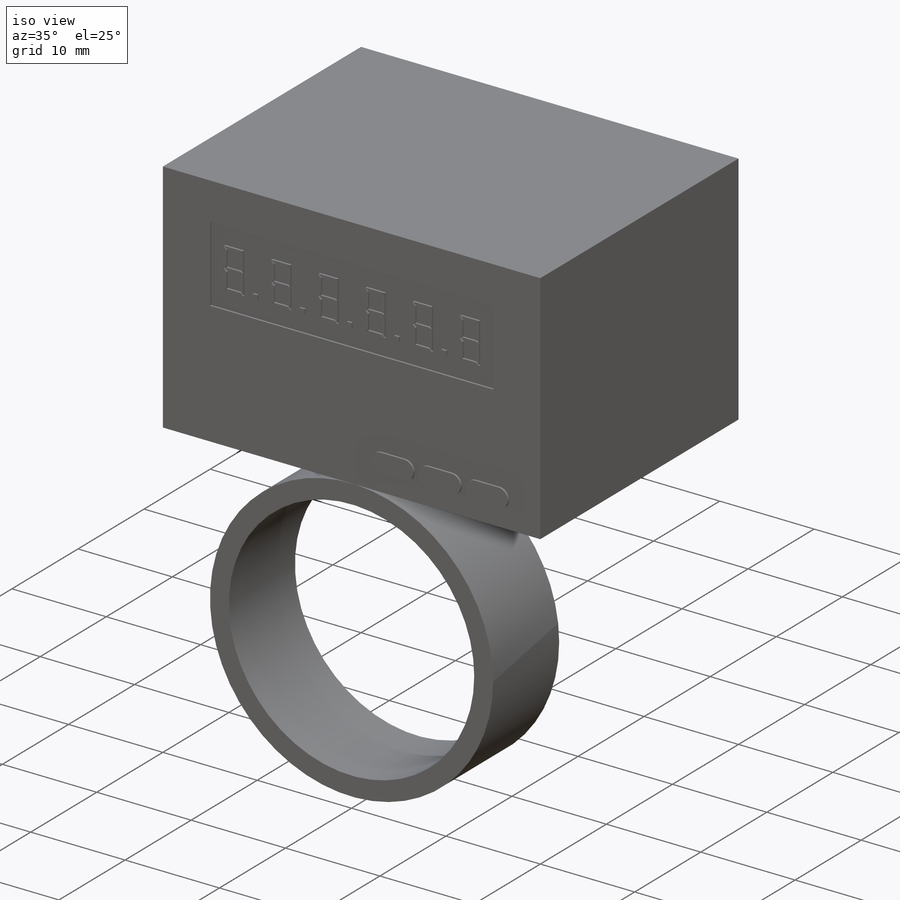
[diagram: iso view]
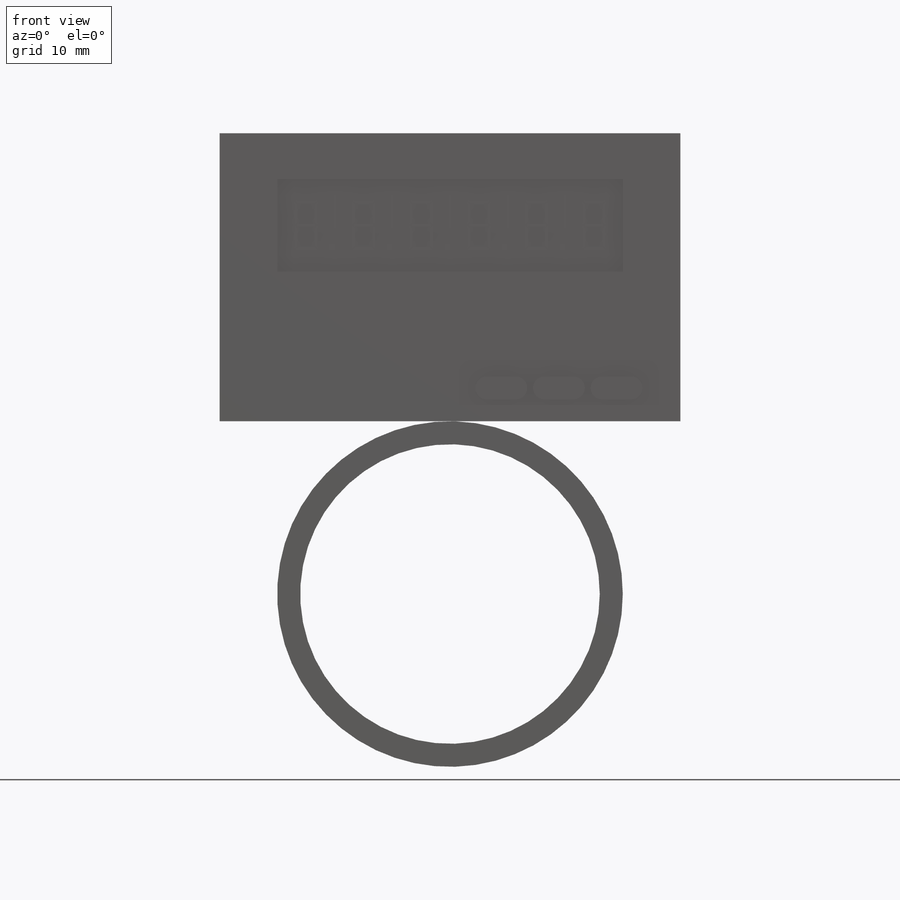
[diagram: front view]
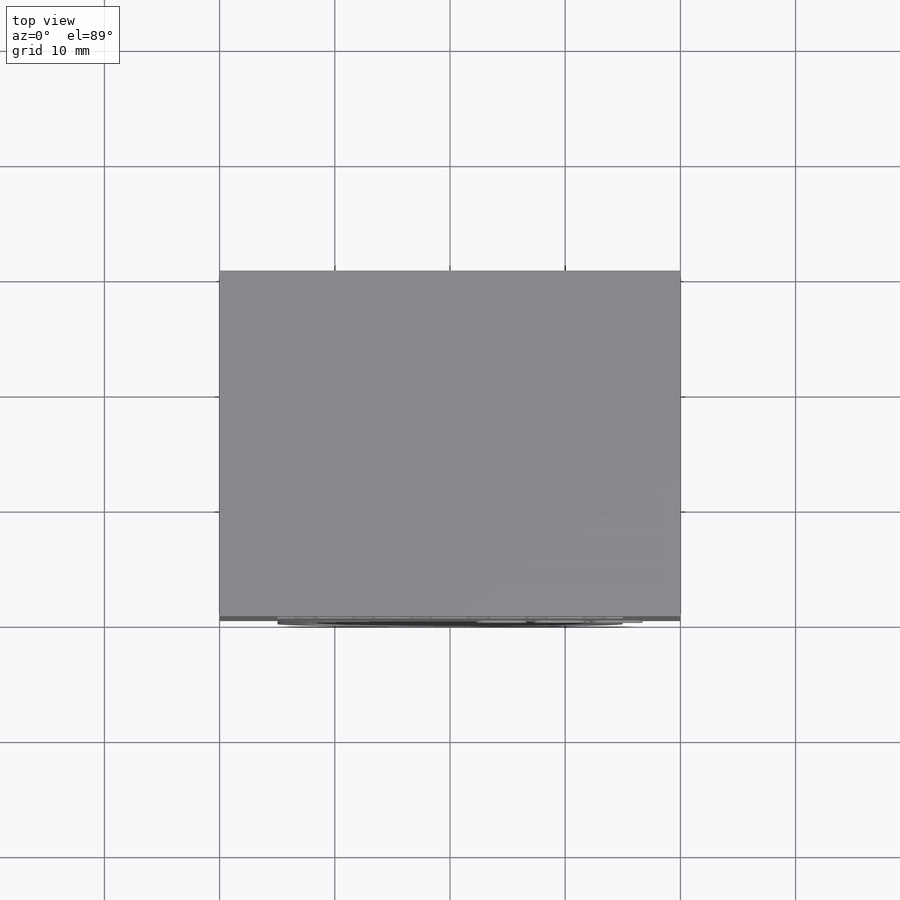
[diagram: top view]
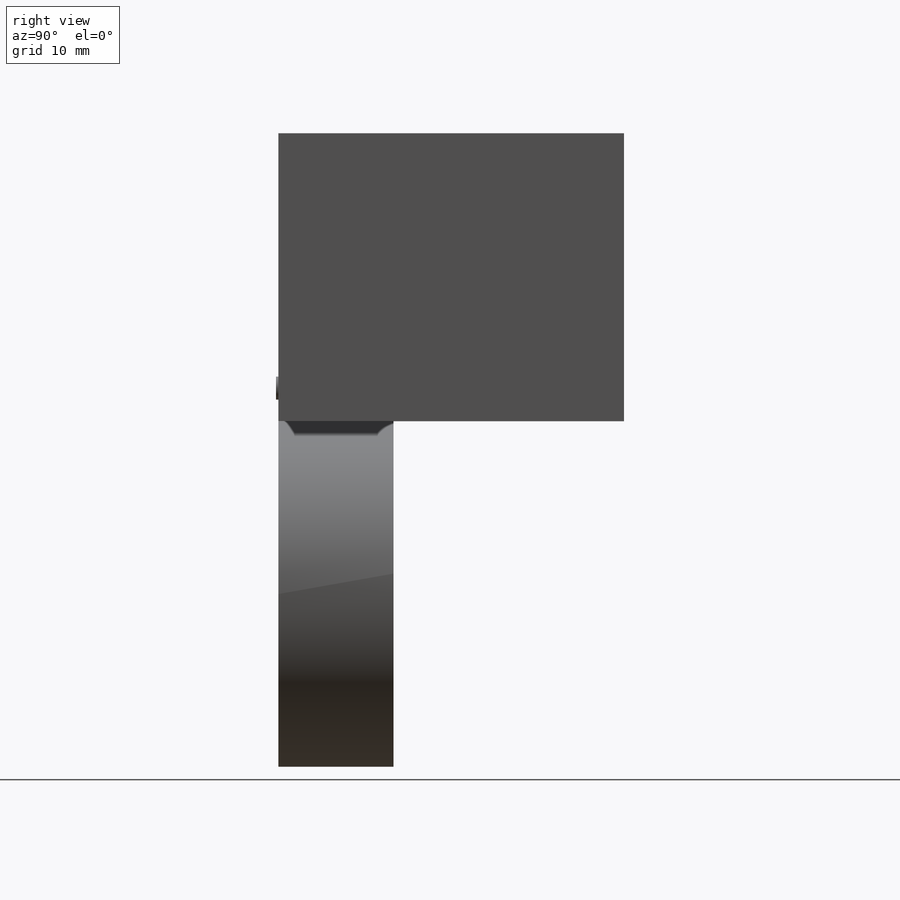
[diagram: right view]
SOLIDWORKS PART (.sldprt)
format: sldprt  version: not decoded by parser v0  size: 504,832 bytes
history: native  units: mm
features: sketch x6, extrude x5, plane x3, pattern_linear x3, material x1, cut_extrude x1 (+10 scaffold rows collapsed)
feature tree (29):
  scaffold x10  (default folders/planes/origin — collapsed)
  material  "材质 <未指定>"
  plane  "前视基准面"
  plane  "上视基准面"
  plane  "右视基准面"
  sketch  "草图1"  dims[D1=40.0mm D2=25.0mm D3=30.0mm D4=15.0mm]
  extrude  "凸台-拉伸1"  Depth=30mm
  sketch  "草图2"  dims[D1=30.0mm D2=8.0mm D3=4.0mm D4=5.0mm]
  cut_extrude  "切除-拉伸1"  Depth=0.2mm
  sketch  "草图3"  dims[c1.D1=2.0mm c1.D2=0.5mm c1.D3=0.5mm c1.D4=2.0mm c1.D5=90.0deg c2.D5=2.0mm c2.D6=0.5mm c2.D7=1.5mm c2.D8=3.0mm c2.D9=1.0mm c2.D10=1.6mm c3.D10=135.0deg c3.D8=0.25mm c4.D10=0.25mm c4.D2=0.1mm c4.D3=1.5mm c4.D9=0.05mm c4.D5=0.25mm c4.D6=0.2mm c4.D11=0.2mm c5.D6=0.2mm c5.D11=135.0deg c6.D11=0.15mm c6.D6=0.2mm c6.D5=0.125mm c7.D6=0.125mm c7.D3=4.0mm c7.D8=0.25mm c7.D11=135.0deg c8.D11=2.5mm c8.D12=0.25mm c8.D13=0.25mm c8.D14=0.25mm c8.D15=0.25mm c8.D16=0.125mm c8.D17=0.125mm c8.D18=1.5mm]
  extrude  "凸台-拉伸2"  Depth=0.2mm
  sketch  "草图4"  dims[c1.D1=0.5mm c1.D2=0.5mm c2.D1=0.5mm c2.D2=0.5mm c2.D3=1.0mm]
  extrude  "凸台-拉伸3"  Depth=0.2mm
  pattern_linear  "阵列(线性)3"  Count1=6 Count2=1 Spacing1=5mm Spacing2=10mm
  pattern_linear  "阵列(线性)4"  Count1=5 Count2=1 Spacing1=5mm Spacing2=10mm
  sketch  "草图5"  dims[D2=1.0mm D4=1.0mm D6=1.0mm D1=2.5mm D3=2.5mm D5=2.5mm]
  extrude  "凸台-拉伸4"  Depth=0.2mm
  pattern_linear  "阵列(线性)5"  Count1=3 Count2=1 Spacing1=5mm Spacing2=10mm
  sketch  "草图6"  dims[D1=30.0mm D3=26.0mm D2=10.0mm]
  extrude  "凸台-拉伸5"  Depth=10mm
decode coverage: 15 of 15 modeling features carry decoded parameters
note: suppression state not decoded; provenance and decode notes live in map.json
